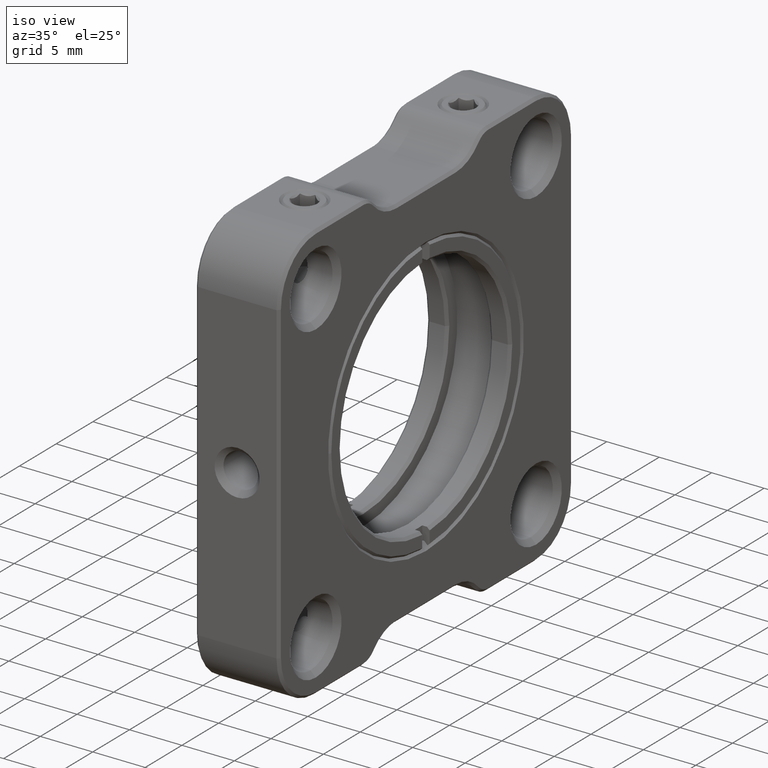
[diagram: clean part render]
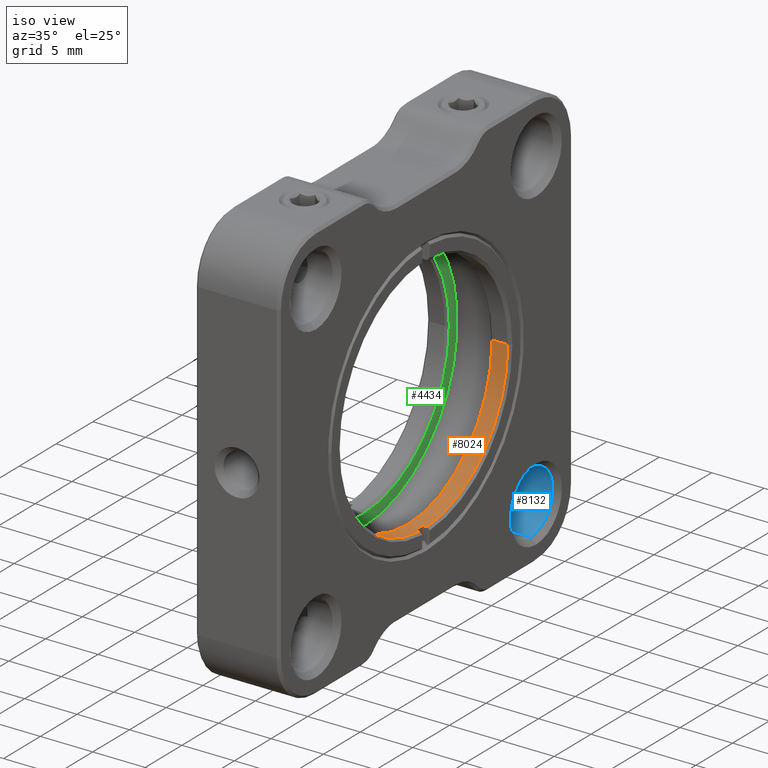
[diagram: same view with three faces highlighted in distinct colors, each labeled with its STEP entity id]
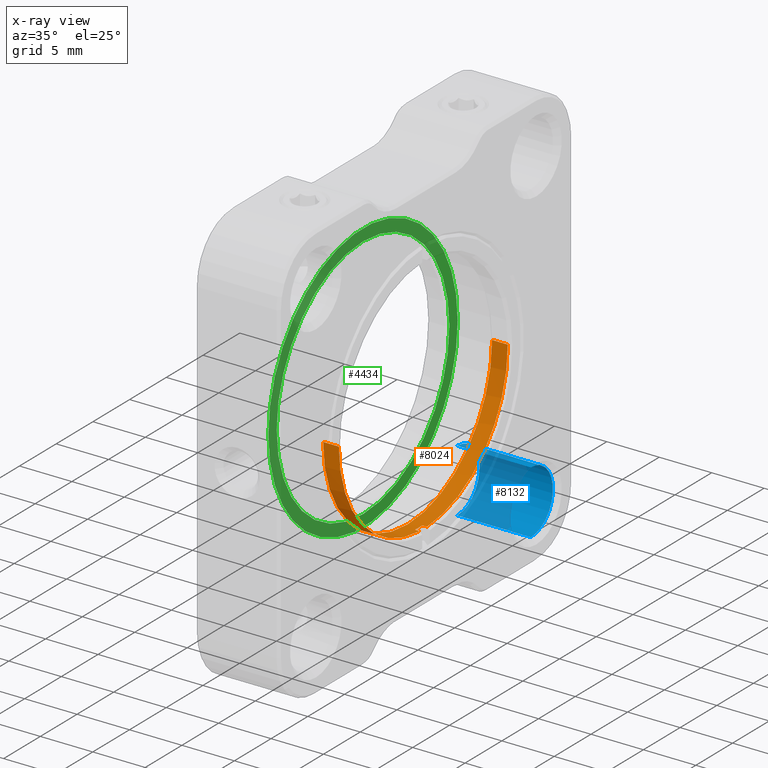
[diagram: x-ray of the same camera — body ghosted, the three highlighted faces saturated]
A machine part, iso view with three faces highlighted in distinct colors.
The next image is the same camera in x-ray (body ghosted, the three faces saturated) — at least one of them is partly hidden behind the body in this view.
Their STEP definitions:

[orange] entity #8024 — the highlighted cylindrical surface (partial cylindrical patch) has radius 11.5045 mm, axis along (-1, -0, 0).
#90 = ORIENTED_EDGE ( 'NONE', *, *, #3523, .T. ) ;
#333 = VERTEX_POINT ( 'NONE', #3529 ) ;
#400 = DIRECTION ( 'NONE',  ( 0.000000000000000000, 1.000000000000000000, 0.000000000000000000 ) ) ;
#531 = CYLINDRICAL_SURFACE ( 'NONE', #3157, 11.50449999999999839 ) ;
#644 = CARTESIAN_POINT ( 'NONE',  ( -11.40960063692994986, 2.609301223409113302, 28.50637044924452113 ) ) ;
#859 = DIRECTION ( 'NONE',  ( -1.000000000000000000, -0.000000000000000000, -0.000000000000000000 ) ) ;
#886 = EDGE_CURVE ( 'NONE', #4063, #1397, #3389, .T. ) ;
#1075 = VERTEX_POINT ( 'NONE', #5678 ) ;
#1131 = ORIENTED_EDGE ( 'NONE', *, *, #6127, .F. ) ;
#1273 = EDGE_CURVE ( 'NONE', #4063, #5849, #2983, .T. ) ;
#1397 = VERTEX_POINT ( 'NONE', #4575 ) ;
#1624 = DIRECTION ( 'NONE',  ( -1.000000000000000000, -0.000000000000000000, 0.000000000000000000 ) ) ;
#1841 = LINE ( 'NONE', #9759, #10114 ) ;
#1898 = LINE ( 'NONE', #4642, #7243 ) ;
#2322 = EDGE_LOOP ( 'NONE', ( #4956, #90, #8464, #1131, #10130, #9284, #7005, #7464 ) ) ;
#2633 = EDGE_CURVE ( 'NONE', #1075, #5849, #4589, .T. ) ;
#2797 = CARTESIAN_POINT ( 'NONE',  ( -10.95960063692994879, 13.61380122340911214, 40.00000000000001421 ) ) ;
#2912 = VECTOR ( 'NONE', #4833, 1000.000000000000000 ) ;
#2983 = CIRCLE ( 'NONE', #5636, 11.50449999999999839 ) ;
#3157 = AXIS2_PLACEMENT_3D ( 'NONE', #7607, #4428, #5337 ) ;
#3389 = LINE ( 'NONE', #9844, #2912 ) ;
#3430 = VERTEX_POINT ( 'NONE', #4386 ) ;
#3523 = EDGE_CURVE ( 'NONE', #7864, #333, #1841, .T. ) ;
#3529 = CARTESIAN_POINT ( 'NONE',  ( -12.45960063692994702, 13.61380122340911214, 40.00000000000001421 ) ) ;
#4005 = CARTESIAN_POINT ( 'NONE',  ( -10.95960063692994879, 2.109301223409113302, 40.00000000000001421 ) ) ;
#4011 = DIRECTION ( 'NONE',  ( -1.000000000000000000, -0.000000000000000000, 0.000000000000000000 ) ) ;
#4063 = VERTEX_POINT ( 'NONE', #8011 ) ;
#4300 = CARTESIAN_POINT ( 'NONE',  ( -11.40960063692994986, 2.109301223409113302, 40.00000000000001421 ) ) ;
#4386 = CARTESIAN_POINT ( 'NONE',  ( -12.45960063692994702, -9.395198776590886425, 40.00000000000001421 ) ) ;
#4428 = DIRECTION ( 'NONE',  ( -1.000000000000000000, -0.000000000000000000, 0.000000000000000000 ) ) ;
#4575 = CARTESIAN_POINT ( 'NONE',  ( -10.95960063692994879, 1.609301223409113302, 28.50637044924452113 ) ) ;
#4589 = LINE ( 'NONE', #4816, #5652 ) ;
#4601 = CARTESIAN_POINT ( 'NONE',  ( -10.95960063692994879, -9.395198776590886425, 40.00000000000001421 ) ) ;
#4642 = CARTESIAN_POINT ( 'NONE',  ( -10.70960063692994879, -9.395198776590886425, 40.00000000000001421 ) ) ;
#4796 = CARTESIAN_POINT ( 'NONE',  ( -10.95960063692994879, 2.109301223409113302, 40.00000000000001421 ) ) ;
#4816 = CARTESIAN_POINT ( 'NONE',  ( -10.70960063692994879, 2.609301223409113302, 28.50637044924452113 ) ) ;
#4833 = DIRECTION ( 'NONE',  ( 1.000000000000000000, 0.000000000000000000, -0.000000000000000000 ) ) ;
#4904 = DIRECTION ( 'NONE',  ( 0.000000000000000000, 1.000000000000000000, 0.000000000000000000 ) ) ;
#4956 = ORIENTED_EDGE ( 'NONE', *, *, #6346, .T. ) ;
#5329 = CIRCLE ( 'NONE', #5724, 11.50449999999999839 ) ;
#5337 = DIRECTION ( 'NONE',  ( 0.000000000000000000, -1.000000000000000000, 0.000000000000000000 ) ) ;
#5457 = CARTESIAN_POINT ( 'NONE',  ( -12.45960063692994702, 2.109301223409113302, 40.00000000000001421 ) ) ;
#5636 = AXIS2_PLACEMENT_3D ( 'NONE', #4300, #9768, #400 ) ;
#5652 = VECTOR ( 'NONE', #4011, 1000.000000000000000 ) ;
#5678 = CARTESIAN_POINT ( 'NONE',  ( -10.95960063692994879, 2.609301223409113302, 28.50637044924452113 ) ) ;
#5724 = AXIS2_PLACEMENT_3D ( 'NONE', #5457, #859, #6256 ) ;
#5754 = FACE_OUTER_BOUND ( 'NONE', #2322, .T. ) ;
#5849 = VERTEX_POINT ( 'NONE', #644 ) ;
#6127 = EDGE_CURVE ( 'NONE', #6643, #3430, #1898, .T. ) ;
#6256 = DIRECTION ( 'NONE',  ( 0.000000000000000000, 1.000000000000000000, 0.000000000000000000 ) ) ;
#6346 = EDGE_CURVE ( 'NONE', #1075, #7864, #9596, .T. ) ;
#6351 = DIRECTION ( 'NONE',  ( 1.000000000000000000, 0.000000000000000000, 0.000000000000000000 ) ) ;
#6637 = DIRECTION ( 'NONE',  ( -1.000000000000000000, -0.000000000000000000, 0.000000000000000000 ) ) ;
#6643 = VERTEX_POINT ( 'NONE', #4601 ) ;
#7005 = ORIENTED_EDGE ( 'NONE', *, *, #1273, .T. ) ;
#7243 = VECTOR ( 'NONE', #1624, 1000.000000000000000 ) ;
#7392 = AXIS2_PLACEMENT_3D ( 'NONE', #4005, #7990, #4904 ) ;
#7464 = ORIENTED_EDGE ( 'NONE', *, *, #2633, .F. ) ;
#7607 = CARTESIAN_POINT ( 'NONE',  ( -10.70960063692994879, 2.109301223409113302, 40.00000000000001421 ) ) ;
#7793 = CIRCLE ( 'NONE', #9209, 11.50449999999999839 ) ;
#7864 = VERTEX_POINT ( 'NONE', #2797 ) ;
#7990 = DIRECTION ( 'NONE',  ( 1.000000000000000000, 0.000000000000000000, 0.000000000000000000 ) ) ;
#8011 = CARTESIAN_POINT ( 'NONE',  ( -11.40960063692994986, 1.609301223409113302, 28.50637044924452113 ) ) ;
#8024 = ADVANCED_FACE ( 'NONE', ( #5754 ), #531, .F. ) ;
#8464 = ORIENTED_EDGE ( 'NONE', *, *, #9556, .T. ) ;
#9209 = AXIS2_PLACEMENT_3D ( 'NONE', #4796, #6351, #9525 ) ;
#9284 = ORIENTED_EDGE ( 'NONE', *, *, #886, .F. ) ;
#9525 = DIRECTION ( 'NONE',  ( 0.000000000000000000, 1.000000000000000000, 0.000000000000000000 ) ) ;
#9556 = EDGE_CURVE ( 'NONE', #333, #3430, #5329, .T. ) ;
#9596 = CIRCLE ( 'NONE', #7392, 11.50449999999999839 ) ;
#9650 = EDGE_CURVE ( 'NONE', #6643, #1397, #7793, .T. ) ;
#9759 = CARTESIAN_POINT ( 'NONE',  ( -10.70960063692994879, 13.61380122340911214, 40.00000000000001421 ) ) ;
#9768 = DIRECTION ( 'NONE',  ( 1.000000000000000000, 0.000000000000000000, 0.000000000000000000 ) ) ;
#9844 = CARTESIAN_POINT ( 'NONE',  ( -10.70960063692994879, 1.609301223409113302, 28.50637044924452113 ) ) ;
#10114 = VECTOR ( 'NONE', #6637, 1000.000000000000000 ) ;
#10130 = ORIENTED_EDGE ( 'NONE', *, *, #9650, .T. ) ;

[blue] entity #8132 — the highlighted cylindrical surface (partial cylindrical patch) has radius 3 mm, axis along (1, -0, -0).
#71 = CARTESIAN_POINT ( 'NONE',  ( -18.20960063692993813, 17.10930122340911197, 25.00000000000001421 ) ) ;
#100 = AXIS2_PLACEMENT_3D ( 'NONE', #71, #5656, #1822 ) ;
#910 = FACE_OUTER_BOUND ( 'NONE', #2837, .T. ) ;
#1151 = CARTESIAN_POINT ( 'NONE',  ( -18.20960063692993813, 17.10930122340911197, 22.00000000000001421 ) ) ;
#1410 = CARTESIAN_POINT ( 'NONE',  ( -18.70960063692994879, 17.10930122340911197, 25.00000000000001421 ) ) ;
#1822 = DIRECTION ( 'NONE',  ( 0.000000000000000000, 0.000000000000000000, -1.000000000000000000 ) ) ;
#1911 = EDGE_CURVE ( 'NONE', #3621, #7216, #6868, .T. ) ;
#2016 = LINE ( 'NONE', #6893, #7734 ) ;
#2571 = CARTESIAN_POINT ( 'NONE',  ( -18.20960063692993813, 17.10930122340911197, 28.00000000000001776 ) ) ;
#2837 = EDGE_LOOP ( 'NONE', ( #5320, #8847, #3192, #3834 ) ) ;
#3007 = DIRECTION ( 'NONE',  ( 1.000000000000000000, -0.000000000000000000, -0.000000000000000000 ) ) ;
#3192 = ORIENTED_EDGE ( 'NONE', *, *, #1911, .T. ) ;
#3235 = VERTEX_POINT ( 'NONE', #8963 ) ;
#3621 = VERTEX_POINT ( 'NONE', #1151 ) ;
#3834 = ORIENTED_EDGE ( 'NONE', *, *, #6719, .T. ) ;
#4798 = DIRECTION ( 'NONE',  ( 0.000000000000000000, 0.000000000000000000, -1.000000000000000000 ) ) ;
#5073 = AXIS2_PLACEMENT_3D ( 'NONE', #9363, #5428, #4798 ) ;
#5253 = DIRECTION ( 'NONE',  ( 1.000000000000000000, -0.000000000000000000, -0.000000000000000000 ) ) ;
#5320 = ORIENTED_EDGE ( 'NONE', *, *, #6970, .F. ) ;
#5389 = CYLINDRICAL_SURFACE ( 'NONE', #5507, 3.000000000000002665 ) ;
#5428 = DIRECTION ( 'NONE',  ( 1.000000000000000000, 0.000000000000000000, 0.000000000000000000 ) ) ;
#5507 = AXIS2_PLACEMENT_3D ( 'NONE', #1410, #3007, #8429 ) ;
#5656 = DIRECTION ( 'NONE',  ( -1.000000000000000000, -0.000000000000000000, -0.000000000000000000 ) ) ;
#6719 = EDGE_CURVE ( 'NONE', #7216, #3235, #9927, .T. ) ;
#6728 = VECTOR ( 'NONE', #5253, 1000.000000000000000 ) ;
#6868 = LINE ( 'NONE', #9959, #6728 ) ;
#6893 = CARTESIAN_POINT ( 'NONE',  ( -18.70960063692994879, 17.10930122340911197, 28.00000000000001776 ) ) ;
#6970 = EDGE_CURVE ( 'NONE', #7246, #3235, #2016, .T. ) ;
#7172 = CIRCLE ( 'NONE', #100, 3.000000000000002665 ) ;
#7216 = VERTEX_POINT ( 'NONE', #7319 ) ;
#7246 = VERTEX_POINT ( 'NONE', #2571 ) ;
#7319 = CARTESIAN_POINT ( 'NONE',  ( -11.20960063692995590, 17.10930122340911197, 22.00000000000001421 ) ) ;
#7734 = VECTOR ( 'NONE', #10057, 1000.000000000000000 ) ;
#8132 = ADVANCED_FACE ( 'NONE', ( #910 ), #5389, .F. ) ;
#8429 = DIRECTION ( 'NONE',  ( 0.000000000000000000, 0.000000000000000000, -1.000000000000000000 ) ) ;
#8847 = ORIENTED_EDGE ( 'NONE', *, *, #9668, .T. ) ;
#8963 = CARTESIAN_POINT ( 'NONE',  ( -11.20960063692995590, 17.10930122340911197, 28.00000000000001776 ) ) ;
#9363 = CARTESIAN_POINT ( 'NONE',  ( -11.20960063692995590, 17.10930122340911197, 25.00000000000001421 ) ) ;
#9668 = EDGE_CURVE ( 'NONE', #7246, #3621, #7172, .T. ) ;
#9927 = CIRCLE ( 'NONE', #5073, 3.000000000000002665 ) ;
#9959 = CARTESIAN_POINT ( 'NONE',  ( -18.70960063692994879, 17.10930122340911197, 22.00000000000001421 ) ) ;
#10057 = DIRECTION ( 'NONE',  ( 1.000000000000000000, -0.000000000000000000, -0.000000000000000000 ) ) ;

[green] entity #4434 — the highlighted planar face has unit normal (-1, -0, 0).
#275 = AXIS2_PLACEMENT_3D ( 'NONE', #3135, #642, #1428 ) ;
#339 = ORIENTED_EDGE ( 'NONE', *, *, #914, .T. ) ;
#524 = CIRCLE ( 'NONE', #2987, 12.89449999999999008 ) ;
#642 = DIRECTION ( 'NONE',  ( -1.000000000000000000, 0.000000000000000000, 0.000000000000000000 ) ) ;
#669 = DIRECTION ( 'NONE',  ( -1.000000000000000000, 0.000000000000000000, 0.000000000000000000 ) ) ;
#914 = EDGE_CURVE ( 'NONE', #7840, #5355, #2421, .T. ) ;
#1411 = VERTEX_POINT ( 'NONE', #3082 ) ;
#1428 = DIRECTION ( 'NONE',  ( 0.000000000000000000, -1.000000000000000000, 0.000000000000000000 ) ) ;
#1637 = DIRECTION ( 'NONE',  ( -1.000000000000000000, -0.000000000000000000, 0.000000000000000000 ) ) ;
#1734 = AXIS2_PLACEMENT_3D ( 'NONE', #9734, #8262, #3620 ) ;
#1761 = VERTEX_POINT ( 'NONE', #5703 ) ;
#1906 = CARTESIAN_POINT ( 'NONE',  ( -16.70960063692994879, 13.86380122340910148, 40.00000000000001421 ) ) ;
#2305 = FACE_BOUND ( 'NONE', #2373, .T. ) ;
#2373 = EDGE_LOOP ( 'NONE', ( #339, #7003 ) ) ;
#2421 = CIRCLE ( 'NONE', #275, 11.75449999999999307 ) ;
#2504 = AXIS2_PLACEMENT_3D ( 'NONE', #9521, #1637, #5581 ) ;
#2519 = ORIENTED_EDGE ( 'NONE', *, *, #2934, .T. ) ;
#2934 = EDGE_CURVE ( 'NONE', #1761, #1411, #524, .T. ) ;
#2987 = AXIS2_PLACEMENT_3D ( 'NONE', #9173, #10008, #6844 ) ;
#3032 = FACE_OUTER_BOUND ( 'NONE', #5437, .T. ) ;
#3082 = CARTESIAN_POINT ( 'NONE',  ( -16.70960063692994879, -10.78519877659087989, 40.00000000000001421 ) ) ;
#3135 = CARTESIAN_POINT ( 'NONE',  ( -16.70960063692994879, 2.109301223409109749, 40.00000000000001421 ) ) ;
#3208 = ORIENTED_EDGE ( 'NONE', *, *, #4692, .T. ) ;
#3620 = DIRECTION ( 'NONE',  ( 0.000000000000000000, -1.000000000000000000, 0.000000000000000000 ) ) ;
#3811 = CARTESIAN_POINT ( 'NONE',  ( -16.70960063692994879, 2.109301223409109749, 40.00000000000001421 ) ) ;
#4434 = ADVANCED_FACE ( 'NONE', ( #2305, #3032 ), #5472, .F. ) ;
#4525 = CIRCLE ( 'NONE', #6219, 11.75449999999999307 ) ;
#4692 = EDGE_CURVE ( 'NONE', #1411, #1761, #6742, .T. ) ;
#4819 = EDGE_CURVE ( 'NONE', #5355, #7840, #4525, .T. ) ;
#5355 = VERTEX_POINT ( 'NONE', #7810 ) ;
#5437 = EDGE_LOOP ( 'NONE', ( #3208, #2519 ) ) ;
#5472 = PLANE ( 'NONE',  #2504 ) ;
#5581 = DIRECTION ( 'NONE',  ( 0.000000000000000000, -1.000000000000000000, -1.110223024625156787E-16 ) ) ;
#5703 = CARTESIAN_POINT ( 'NONE',  ( -16.70960063692994879, 15.00380122340909850, 40.00000000000001421 ) ) ;
#6219 = AXIS2_PLACEMENT_3D ( 'NONE', #3811, #669, #7615 ) ;
#6742 = CIRCLE ( 'NONE', #1734, 12.89449999999999008 ) ;
#6844 = DIRECTION ( 'NONE',  ( 0.000000000000000000, -1.000000000000000000, 0.000000000000000000 ) ) ;
#7003 = ORIENTED_EDGE ( 'NONE', *, *, #4819, .T. ) ;
#7615 = DIRECTION ( 'NONE',  ( 0.000000000000000000, -1.000000000000000000, 0.000000000000000000 ) ) ;
#7810 = CARTESIAN_POINT ( 'NONE',  ( -16.70960063692994879, -9.645198776590882872, 40.00000000000001421 ) ) ;
#7840 = VERTEX_POINT ( 'NONE', #1906 ) ;
#8262 = DIRECTION ( 'NONE',  ( 1.000000000000000000, -0.000000000000000000, -0.000000000000000000 ) ) ;
#9173 = CARTESIAN_POINT ( 'NONE',  ( -16.70960063692994879, 2.109301223409109749, 40.00000000000001421 ) ) ;
#9521 = CARTESIAN_POINT ( 'NONE',  ( -16.70960063692994879, 2.109301223409109749, 40.00000000000001421 ) ) ;
#9734 = CARTESIAN_POINT ( 'NONE',  ( -16.70960063692994879, 2.109301223409109749, 40.00000000000001421 ) ) ;
#10008 = DIRECTION ( 'NONE',  ( 1.000000000000000000, -0.000000000000000000, -0.000000000000000000 ) ) ;